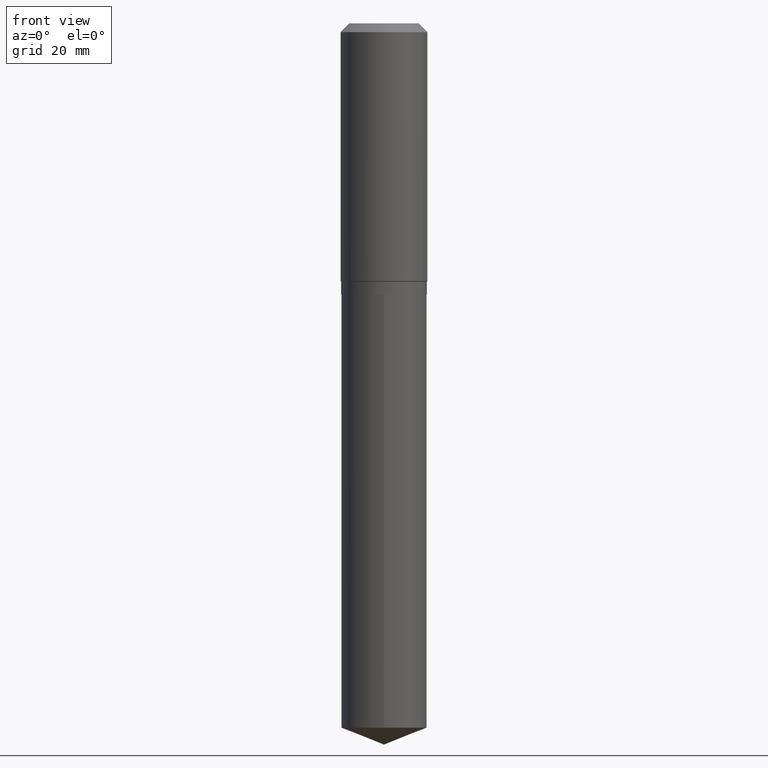
[diagram: clean part render]
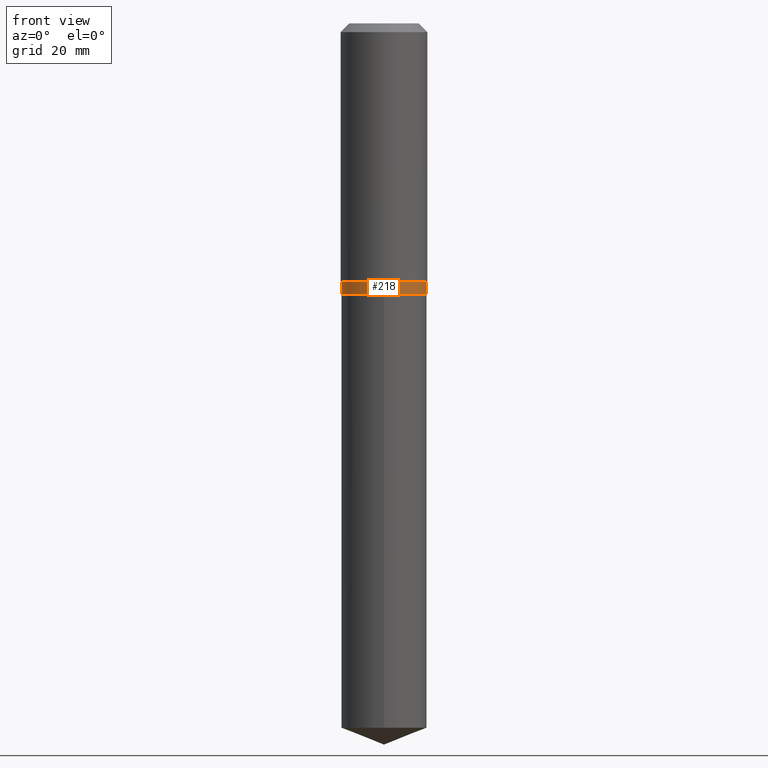
[diagram: same view with one face highlighted and labeled with its STEP entity id]
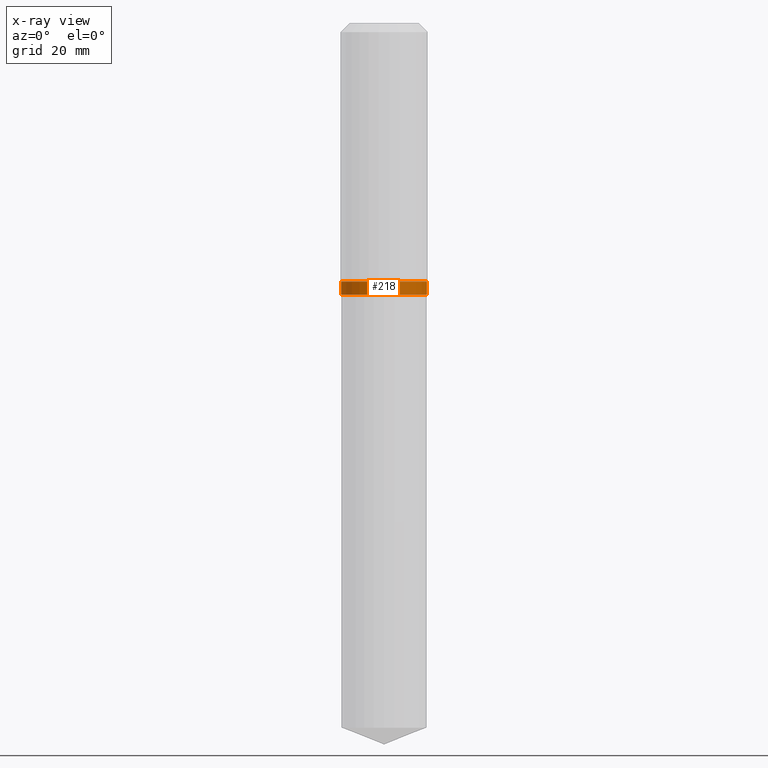
[diagram: x-ray of the same camera — body ghosted, the highlighted face saturated]
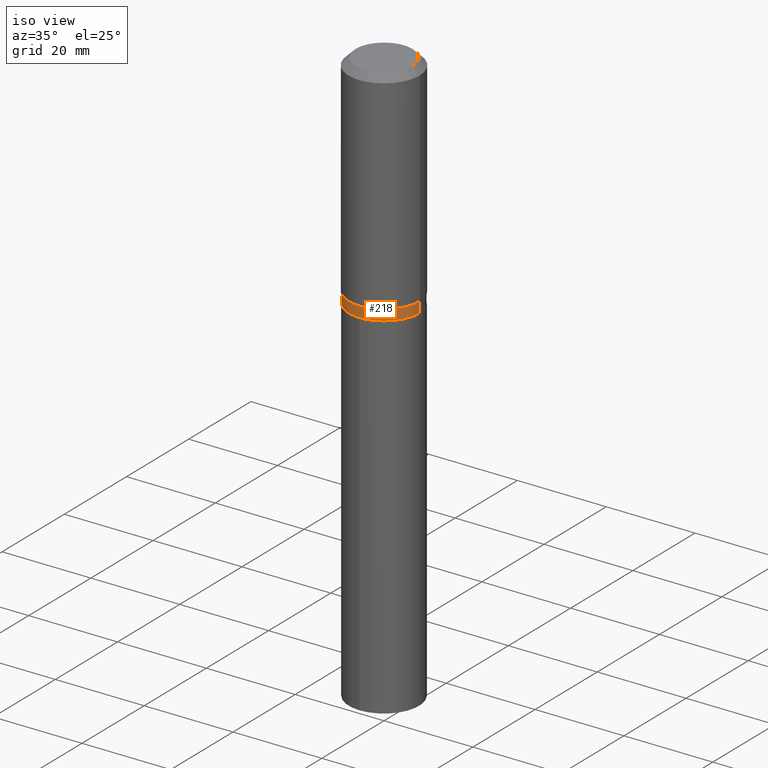
[diagram: same view with one face highlighted and labeled with its STEP entity id]
A machine part, front view. The second image highlights one B-rep face of the part: STEP entity #218.
The next image is the same camera in x-ray: the body ghosted, the highlighted face saturated — about 0% of this face is hidden behind the body in this view.
A second angle (iso view) of the same face is appended — the face is thin or edge-on in the first view.
In plain terms, the highlighted cylindrical surface (partial cylindrical patch) has radius 7.9007 mm, axis along (-0, 0, 1).
Its self-contained STEP definition (entity closure, byte-faithful):
#9 = CARTESIAN_POINT ( 'NONE',  ( -0.3110499999999999932, -4.497865342670600152E-15, -1.967799999999999327 ) ) ;
#16 = AXIS2_PLACEMENT_3D ( 'NONE', #188, #291, #29 ) ;
#29 = DIRECTION ( 'NONE',  ( 1.000000000000000000, -6.982962677686266711E-15, 4.876176775795936353E-29 ) ) ;
#36 = DIRECTION ( 'NONE',  ( -2.445468806185136597E-29, 3.491481338843145583E-15, 1.000000000000000000 ) ) ;
#41 = VERTEX_POINT ( 'NONE', #209 ) ;
#67 = ORIENTED_EDGE ( 'NONE', *, *, #404, .T. ) ;
#116 = CARTESIAN_POINT ( 'NONE',  ( 0.3110499999999999932, -2.172050540894313232E-15, 1.516734786111326002E-29 ) ) ;
#120 = ORIENTED_EDGE ( 'NONE', *, *, #347, .F. ) ;
#126 = EDGE_CURVE ( 'NONE', #362, #183, #411, .T. ) ;
#132 = DIRECTION ( 'NONE',  ( -2.445468806185136597E-29, 3.491481338843145583E-15, 1.000000000000000000 ) ) ;
#141 = CYLINDRICAL_SURFACE ( 'NONE', #16, 0.3110499999999999932 ) ;
#156 = LINE ( 'NONE', #116, #309 ) ;
#178 = CARTESIAN_POINT ( 'NONE',  ( 4.812193516811110904E-29, -6.870536978575539236E-15, -1.967799999999999327 ) ) ;
#183 = VERTEX_POINT ( 'NONE', #225 ) ;
#188 = CARTESIAN_POINT ( 'NONE',  ( 0.000000000000000000, 0.000000000000000000, 0.000000000000000000 ) ) ;
#197 = ORIENTED_EDGE ( 'NONE', *, *, #126, .T. ) ;
#199 = CARTESIAN_POINT ( 'NONE',  ( 4.584520370955274765E-29, -6.545480065929243438E-15, -1.874699999999999589 ) ) ;
#202 = DIRECTION ( 'NONE',  ( -2.445468806185136877E-29, 3.491481338843145188E-15, 1.000000000000000000 ) ) ;
#209 = CARTESIAN_POINT ( 'NONE',  ( 0.3110499999999999932, -8.717530606823556276E-15, -1.874699999999999589 ) ) ;
#218 = ADVANCED_FACE ( 'NONE', ( #479 ), #141, .T. ) ;
#225 = CARTESIAN_POINT ( 'NONE',  ( 0.3110499999999999932, -9.042587519469852073E-15, -1.967799999999999327 ) ) ;
#238 = DIRECTION ( 'NONE',  ( 1.000000000000000000, -6.982962677686265133E-15, 0.000000000000000000 ) ) ;
#242 = AXIS2_PLACEMENT_3D ( 'NONE', #199, #36, #238 ) ;
#282 = DIRECTION ( 'NONE',  ( -2.445468806185136877E-29, 3.491481338843145188E-15, 1.000000000000000000 ) ) ;
#291 = DIRECTION ( 'NONE',  ( -2.445468806185136597E-29, 3.491481338843145583E-15, 1.000000000000000000 ) ) ;
#307 = LINE ( 'NONE', #417, #379 ) ;
#309 = VECTOR ( 'NONE', #282, 39.37007874015748143 ) ;
#347 = EDGE_CURVE ( 'NONE', #362, #377, #307, .T. ) ;
#362 = VERTEX_POINT ( 'NONE', #9 ) ;
#377 = VERTEX_POINT ( 'NONE', #413 ) ;
#379 = VECTOR ( 'NONE', #202, 39.37007874015748143 ) ;
#380 = EDGE_LOOP ( 'NONE', ( #120, #197, #67, #451 ) ) ;
#381 = EDGE_CURVE ( 'NONE', #377, #41, #389, .T. ) ;
#388 = AXIS2_PLACEMENT_3D ( 'NONE', #178, #132, #474 ) ;
#389 = CIRCLE ( 'NONE', #242, 0.3110499999999999932 ) ;
#404 = EDGE_CURVE ( 'NONE', #183, #41, #156, .T. ) ;
#411 = CIRCLE ( 'NONE', #388, 0.3110499999999999932 ) ;
#413 = CARTESIAN_POINT ( 'NONE',  ( -0.3110499999999999932, -4.497865342670600152E-15, -1.874699999999999589 ) ) ;
#417 = CARTESIAN_POINT ( 'NONE',  ( -0.3110499999999999932, 2.210143179581791580E-15, -1.530034759823788486E-29 ) ) ;
#451 = ORIENTED_EDGE ( 'NONE', *, *, #381, .F. ) ;
#474 = DIRECTION ( 'NONE',  ( 1.000000000000000000, -6.982962677686265133E-15, 0.000000000000000000 ) ) ;
#479 = FACE_OUTER_BOUND ( 'NONE', #380, .T. ) ;